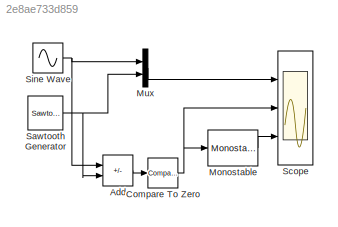
MODEL slx_2e8ae733d859
KIND model
CONFIG AbsTol = auto
CONFIG EnableMultiTasking = off
CONFIG FixedStep = auto
CONFIG MaxStep = auto
CONFIG MinStep = auto
CONFIG RelTol = 1e-3
CONFIG SampleTimeConstraint = Unconstrained
CONFIG Solver = VariableStepAuto
CONFIG SolverName = VariableStepAuto
CONFIG StartTime = 0.0
CONFIG StopTime = 0.11
BLOCK [Sum] Add
  IconShape = rectangular
  Inputs = +-
  Ports = [2, 1]
BLOCK [Reference] Compare To Zero  REF=simulink/Logic and Bit
Operations/Compare
To Zero
  Ports = [1, 1]
  SourceBlock = simulink/Logic and Bit\nOperations/Compare\nTo Zero
  SourceProductBaseCode = SL
  SourceType = Compare To Zero
BLOCK [Reference] Monostable  REF=powerlib_meascontrol/Logic/Monostable
  Ports = [1, 1]
  SourceBlock = powerlib_meascontrol/Logic/Monostable
  SourceProductBaseCode = PS
  SourceType = Monostable
BLOCK [Mux] Mux
  DisplayOption = bar
  Inputs = 2
  Ports = [2, 1]
BLOCK [Reference] Sawtooth Generator  REF=powerlib_meascontrol/Pulse & Signal
Generators/Sawtooth
Generator
  Ports = [0, 1]
  SourceBlock = powerlib_meascontrol/Pulse & Signal\nGenerators/Sawtooth\nGenerator
  SourceProductBaseCode = PS
  SourceType = Sawtooth Generator
BLOCK [Scope] Scope
  Floating = off
  NumInputPorts = 3
  Ports = [3]
  ScopeSpecificationString = Simulink.scopes.TimeScopeBlockCfg('CurrentConfiguration', extmgr.ConfigurationSet(extmgr.Configuration('Core','General UI',true,'FigureColor',[1 1 1]),extmgr.Configuration('Core','Source UI',true),extmgr.Configuration('Sources','WiredSimulink',true),extmgr.Configuration('Visuals','Time Domain',true,'SerializedDisplays',{struct('MinYLimReal','-1.25','MaxYLimReal','1.25','YLabelReal','','MinYLimMag'...<+3210ch>
BLOCK [Sin] Sine Wave
  Amplitude = 0.75
  Frequency = 60
  Ports = [0, 1]
  SampleTime = 0
LINE Add:1 -> Compare To Zero:1
NET Compare To Zero:1 -> Monostable:1, Scope:2
LINE Monostable:1 -> Scope:3
LINE Mux:1 -> Scope:1
NET Sawtooth Generator:1 -> Add:2, Mux:2
NET Sine Wave:1 -> Add:1, Mux:1
note: NET lines group one-source signal fan-out (src -> all destinations, sorted); 1:1 wires keep LINE
